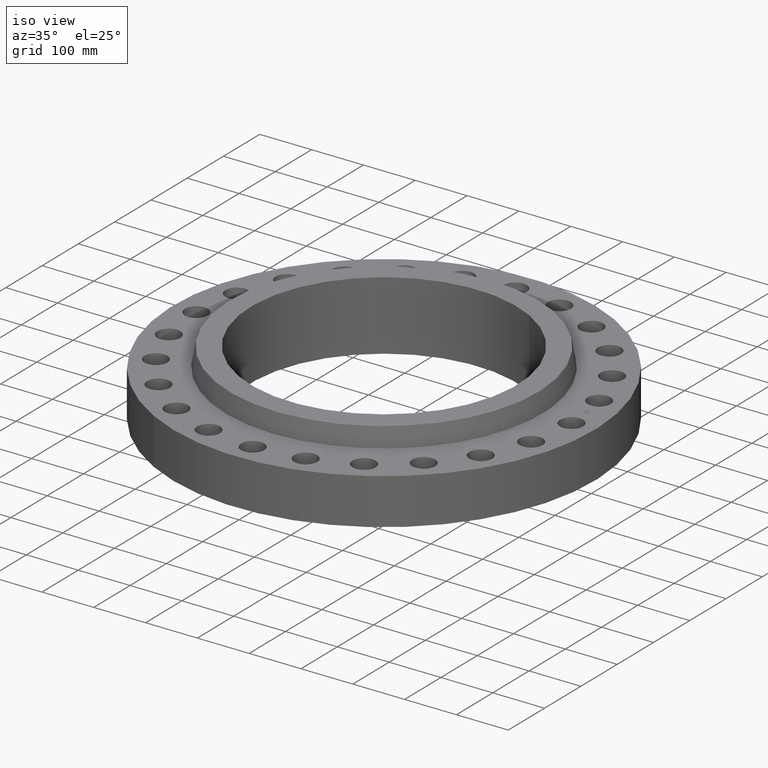
[diagram: clean part render]
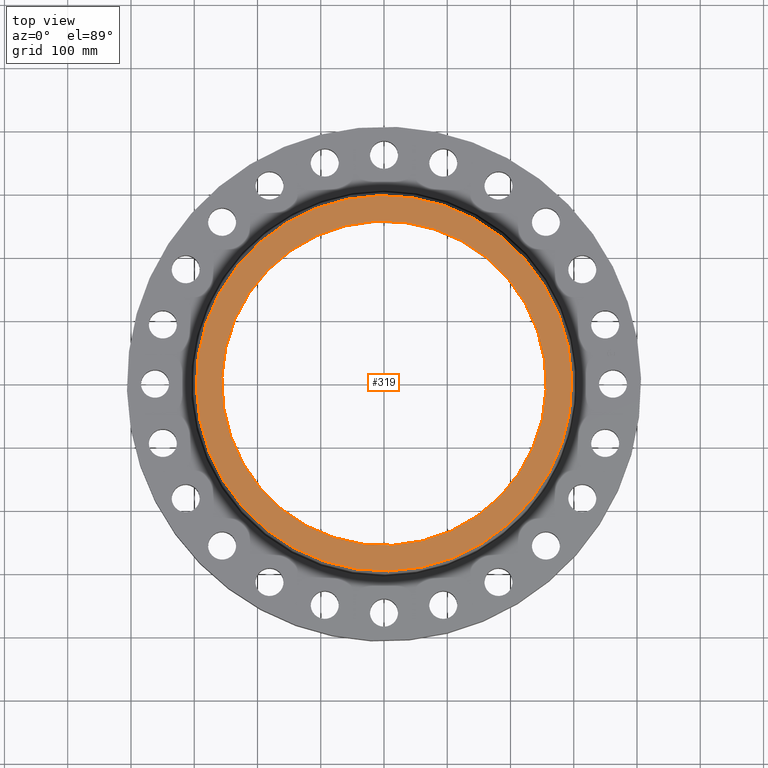
[diagram: tour spotlight — one face highlighted and labeled with its STEP entity id]
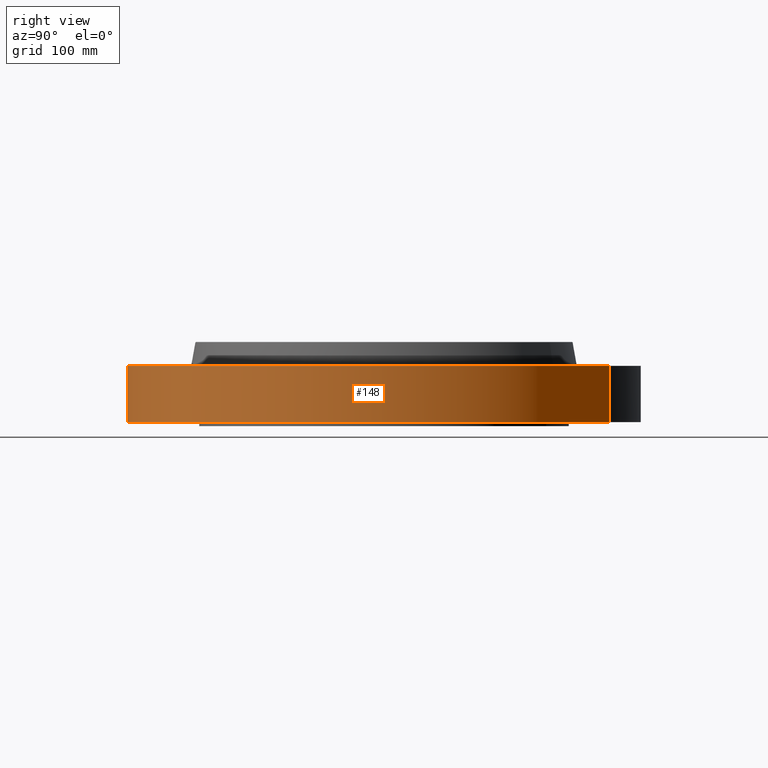
[diagram: tour spotlight — one face highlighted and labeled with its STEP entity id]
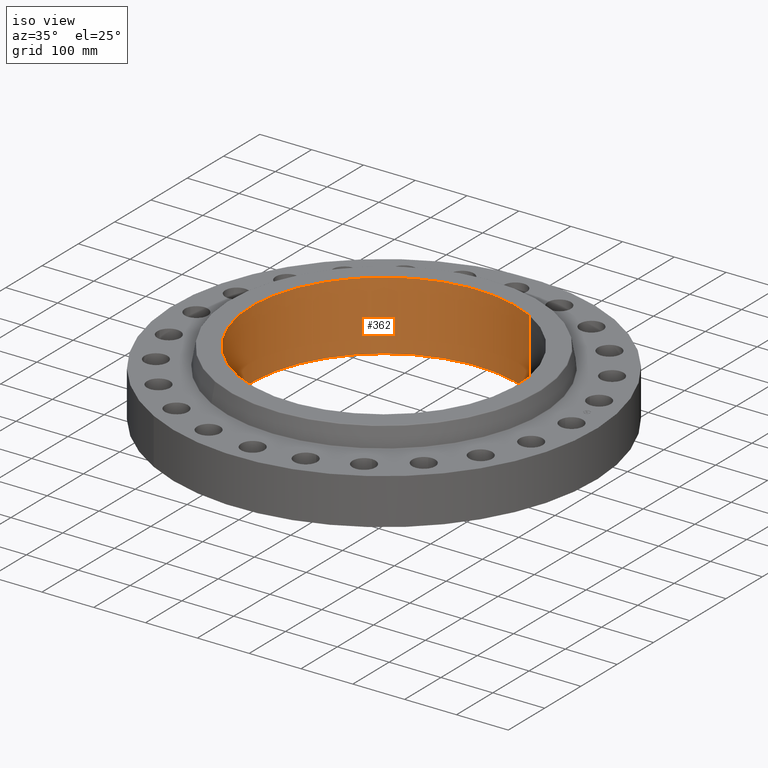
[diagram: tour spotlight — one face highlighted and labeled with its STEP entity id]
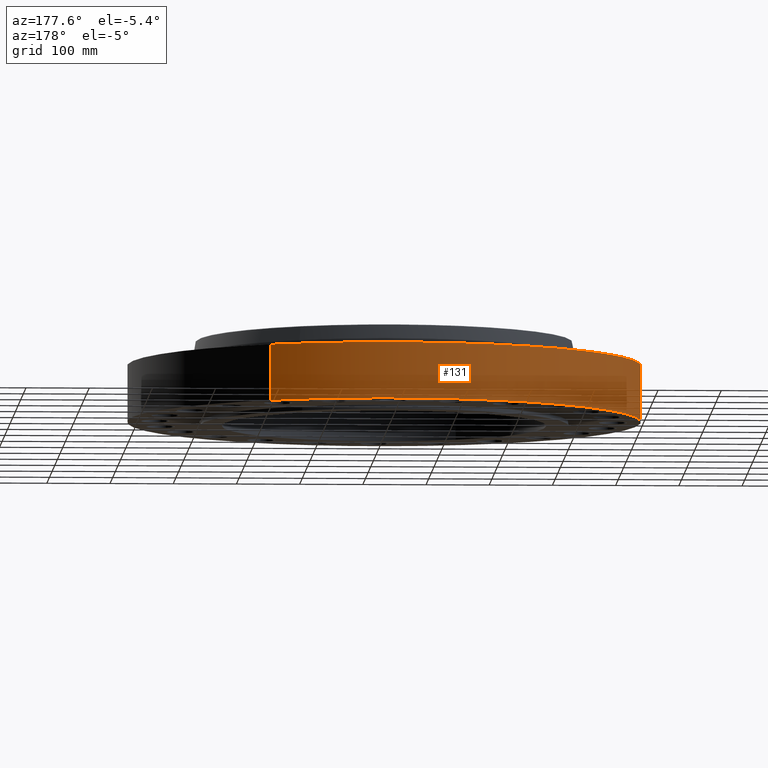
[diagram: tour spotlight — one face highlighted and labeled with its STEP entity id]
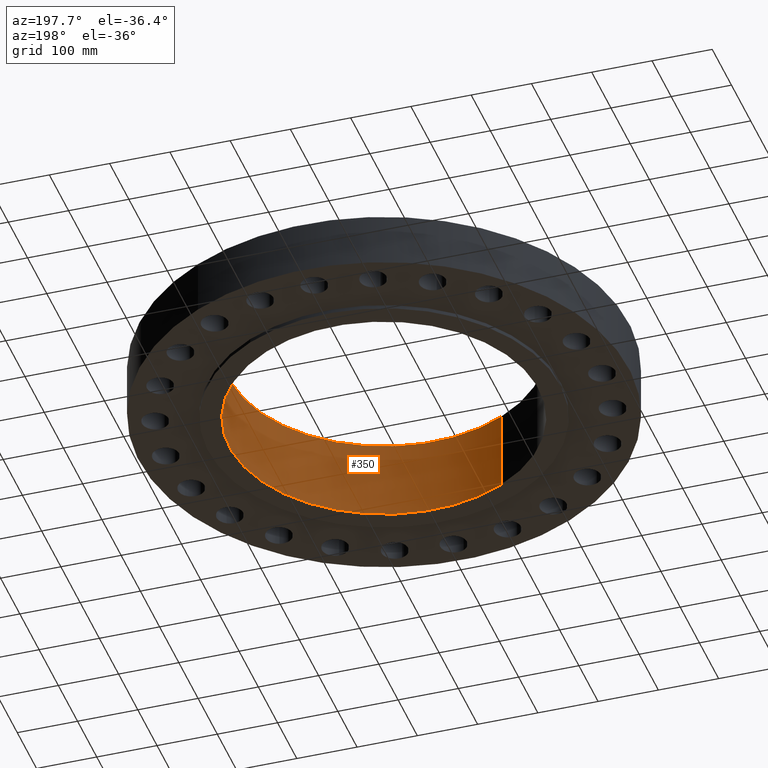
[diagram: tour spotlight — one face highlighted and labeled with its STEP entity id]
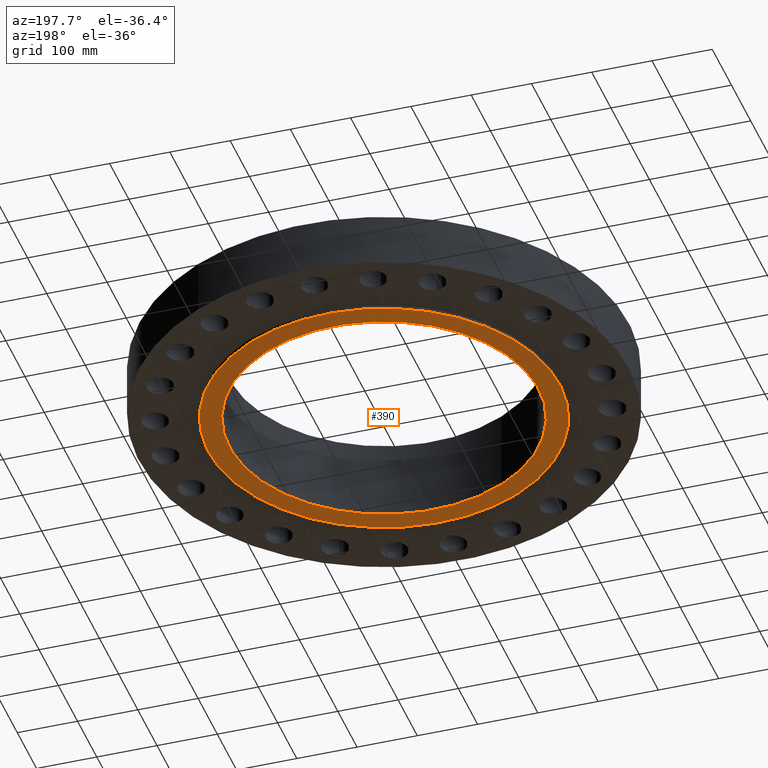
[diagram: tour spotlight — one face highlighted and labeled with its STEP entity id]
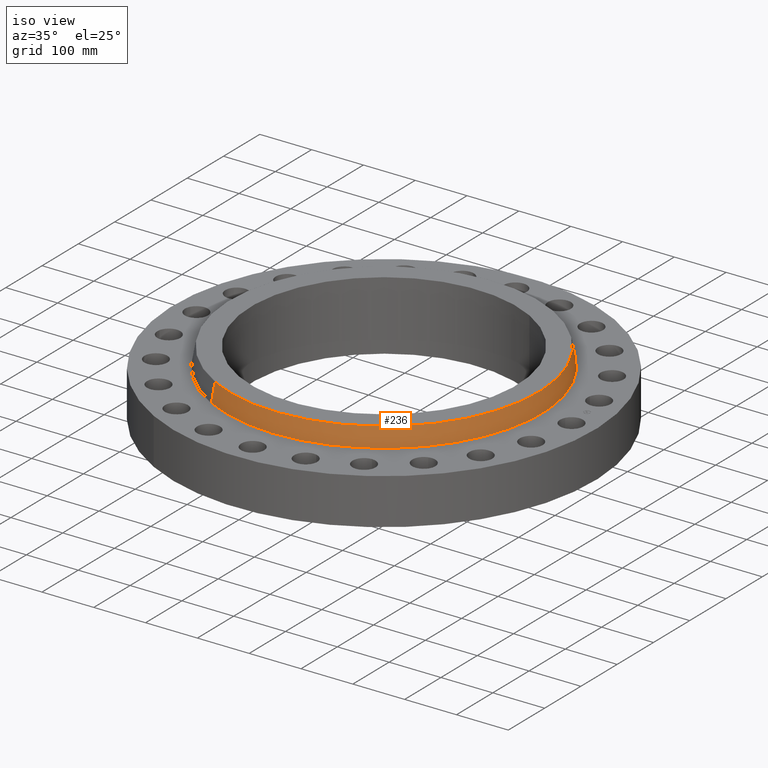
[diagram: tour spotlight — one face highlighted and labeled with its STEP entity id]
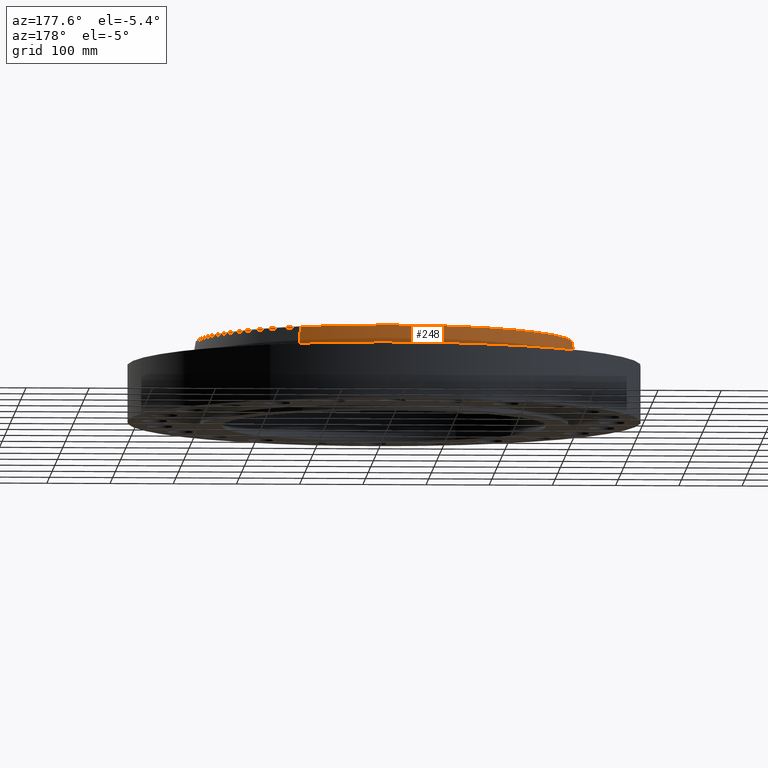
[diagram: tour spotlight — one face highlighted and labeled with its STEP entity id]
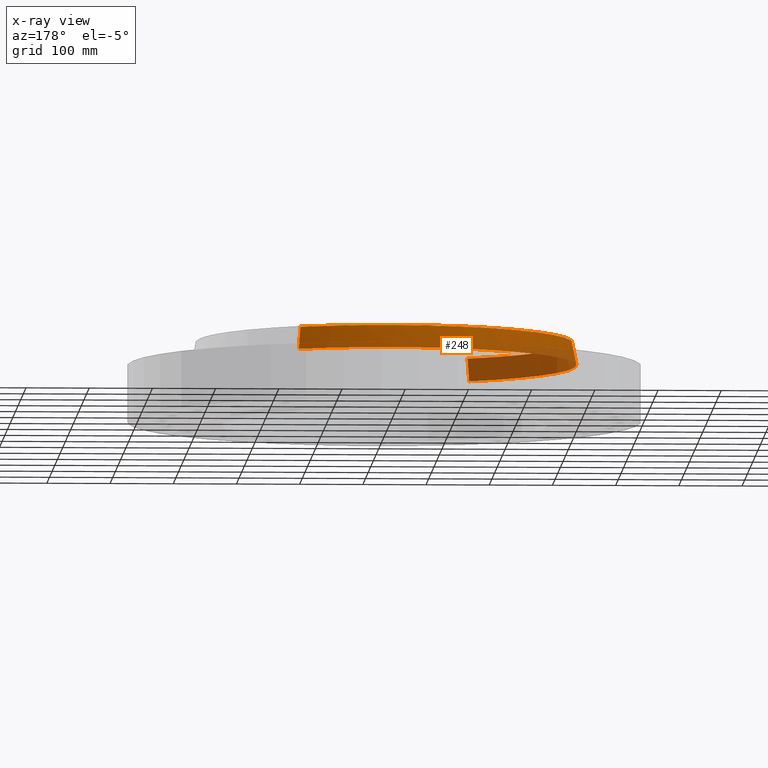
[diagram: x-ray of the same camera — body ghosted, this tour face saturated]
A machine part: a face-by-face anatomy tour. The part has 449 B-rep faces; the first image is the clean iso view, then the 8 largest visible faces are spotlighted one at a time (largest first), each with its STEP entity span.

Face 1 — top view, entity #319. In plain terms, the highlighted planar face has unit normal (0, 0, -1).
Definition (entity closure, byte-faithful):
#263=AXIS2_PLACEMENT_3D('Circle Axis2P3D',#261,#262,$) ;
#282=AXIS2_PLACEMENT_3D('Circle Axis2P3D',#280,#281,$) ;
#295=AXIS2_PLACEMENT_3D('Plane Axis2P3D',#292,#293,#294) ;
#303=AXIS2_PLACEMENT_3D('Circle Axis2P3D',#301,#302,$) ;
#312=AXIS2_PLACEMENT_3D('Circle Axis2P3D',#310,#311,$) ;
#258=CARTESIAN_POINT('Vertex',(5.60216582917,10.2546957653,5.00000000002)) ;
#261=CARTESIAN_POINT('Axis2P3D Location',(0.,0.,5.00000000002)) ;
#265=CARTESIAN_POINT('Vertex',(-5.60216582917,-10.2546957653,5.00000000002)) ;
#280=CARTESIAN_POINT('Axis2P3D Location',(0.,0.,5.00000000002)) ;
#292=CARTESIAN_POINT('Axis2P3D Location',(0.,11.6851635511,5.00000000002)) ;
#301=CARTESIAN_POINT('Axis2P3D Location',(0.,0.,5.00000000002)) ;
#305=CARTESIAN_POINT('Vertex',(-4.84219793992,-8.86358387513,5.00000000002)) ;
#307=CARTESIAN_POINT('Vertex',(4.84219793992,8.86358387513,5.00000000002)) ;
#310=CARTESIAN_POINT('Axis2P3D Location',(0.,0.,5.00000000002)) ;
#262=DIRECTION('Axis2P3D Direction',(0.,0.,-0.0393700787402)) ;
#281=DIRECTION('Axis2P3D Direction',(0.,0.,-0.0393700787402)) ;
#293=DIRECTION('Axis2P3D Direction',(0.,0.,-0.0393700787402)) ;
#294=DIRECTION('Axis2P3D XDirection',(0.0393700787402,0.,0.)) ;
#302=DIRECTION('Axis2P3D Direction',(0.,0.,-0.0393700787402)) ;
#311=DIRECTION('Axis2P3D Direction',(0.,0.,-0.0393700787402)) ;
#298=ORIENTED_EDGE('',*,*,#267,.F.) ;
#299=ORIENTED_EDGE('',*,*,#284,.F.) ;
#316=ORIENTED_EDGE('',*,*,#309,.T.) ;
#317=ORIENTED_EDGE('',*,*,#314,.T.) ;
#318=FACE_BOUND('',#315,.T.) ;
#319=ADVANCED_FACE('PartBody',(#300,#318),#296,.F.) ;
#264=CIRCLE('generated circle',#263,11.6851635511) ;
#283=CIRCLE('generated circle',#282,11.6851635511) ;
#304=CIRCLE('generated circle',#303,10.1) ;
#313=CIRCLE('generated circle',#312,10.1) ;
#267=EDGE_CURVE('',#259,#266,#264,.T.) ;
#284=EDGE_CURVE('',#266,#259,#283,.T.) ;
#309=EDGE_CURVE('',#306,#308,#304,.T.) ;
#314=EDGE_CURVE('',#308,#306,#313,.T.) ;
#297=EDGE_LOOP('',(#298,#299)) ;
#315=EDGE_LOOP('',(#316,#317)) ;
#300=FACE_OUTER_BOUND('',#297,.T.) ;
#296=PLANE('',#295) ;
#259=VERTEX_POINT('',#258) ;
#266=VERTEX_POINT('',#265) ;
#306=VERTEX_POINT('',#305) ;
#308=VERTEX_POINT('',#307) ;

Face 2 — right view, entity #148. In plain terms, the highlighted cylindrical surface (partial cylindrical patch) has radius 406.4 mm, axis along (0, 0, -1).
Definition (entity closure, byte-faithful):
#95=AXIS2_PLACEMENT_3D('Cylinder Axis2P3D',#92,#93,#94) ;
#134=AXIS2_PLACEMENT_3D('Circle Axis2P3D',#132,#133,$) ;
#139=AXIS2_PLACEMENT_3D('Circle Axis2P3D',#137,#138,$) ;
#92=CARTESIAN_POINT('Axis2P3D Location',(0.,0.,2.37500000001)) ;
#101=CARTESIAN_POINT('Vertex',(-7.6708086177,-14.0413209903,1.67844740731E-015)) ;
#103=CARTESIAN_POINT('Vertex',(7.6708086177,14.0413209903,1.67844740731E-015)) ;
#106=CARTESIAN_POINT('Line Origine',(-7.6708086177,-14.0413209903,1.75000000001)) ;
#110=CARTESIAN_POINT('Vertex',(-7.6708086177,-14.0413209903,3.50000000001)) ;
#117=CARTESIAN_POINT('Vertex',(7.6708086177,14.0413209903,3.50000000001)) ;
#120=CARTESIAN_POINT('Line Origine',(7.6708086177,14.0413209903,1.75000000001)) ;
#132=CARTESIAN_POINT('Axis2P3D Location',(0.,0.,1.95818864186E-015)) ;
#137=CARTESIAN_POINT('Axis2P3D Location',(0.,0.,3.50000000001)) ;
#93=DIRECTION('Axis2P3D Direction',(0.,0.,-0.0393700787402)) ;
#94=DIRECTION('Axis2P3D XDirection',(0.0188750212049,0.0345504945626,0.)) ;
#107=DIRECTION('Vector Direction',(0.,0.,-0.0393700787402)) ;
#121=DIRECTION('Vector Direction',(0.,0.,-0.0393700787402)) ;
#133=DIRECTION('Axis2P3D Direction',(0.,0.,-0.0393700787402)) ;
#138=DIRECTION('Axis2P3D Direction',(0.,0.,-0.0393700787402)) ;
#108=VECTOR('Line Direction',#107,0.0393700787402) ;
#122=VECTOR('Line Direction',#121,0.0393700787402) ;
#143=ORIENTED_EDGE('',*,*,#136,.F.) ;
#144=ORIENTED_EDGE('',*,*,#124,.T.) ;
#145=ORIENTED_EDGE('',*,*,#141,.T.) ;
#146=ORIENTED_EDGE('',*,*,#112,.F.) ;
#148=ADVANCED_FACE('PartBody',(#147),#96,.T.) ;
#135=CIRCLE('generated circle',#134,16.0000000001) ;
#140=CIRCLE('generated circle',#139,16.0000000001) ;
#96=CYLINDRICAL_SURFACE('generated cylinder',#95,16.0000000001) ;
#112=EDGE_CURVE('',#102,#111,#109,.F.) ;
#124=EDGE_CURVE('',#104,#118,#123,.F.) ;
#136=EDGE_CURVE('',#104,#102,#135,.T.) ;
#141=EDGE_CURVE('',#118,#111,#140,.T.) ;
#142=EDGE_LOOP('',(#143,#144,#145,#146)) ;
#147=FACE_OUTER_BOUND('',#142,.T.) ;
#109=LINE('Line',#106,#108) ;
#123=LINE('Line',#120,#122) ;
#102=VERTEX_POINT('',#101) ;
#104=VERTEX_POINT('',#103) ;
#111=VERTEX_POINT('',#110) ;
#118=VERTEX_POINT('',#117) ;

Face 3 — iso view, entity #362. In plain terms, the highlighted cylindrical surface (partial cylindrical patch) has radius 256.54 mm, axis along (0, 0, -1).
Definition (entity closure, byte-faithful):
#303=AXIS2_PLACEMENT_3D('Circle Axis2P3D',#301,#302,$) ;
#323=AXIS2_PLACEMENT_3D('Cylinder Axis2P3D',#320,#321,#322) ;
#353=AXIS2_PLACEMENT_3D('Circle Axis2P3D',#351,#352,$) ;
#301=CARTESIAN_POINT('Axis2P3D Location',(0.,0.,5.00000000002)) ;
#305=CARTESIAN_POINT('Vertex',(-4.84219793992,-8.86358387513,5.00000000002)) ;
#307=CARTESIAN_POINT('Vertex',(4.84219793992,8.86358387513,5.00000000002)) ;
#320=CARTESIAN_POINT('Axis2P3D Location',(0.,0.,2.37500000001)) ;
#325=CARTESIAN_POINT('Line Origine',(4.84219793992,8.86358387513,2.37500000001)) ;
#329=CARTESIAN_POINT('Vertex',(4.84219793992,8.86358387513,-0.250000000001)) ;
#336=CARTESIAN_POINT('Vertex',(-4.84219793992,-8.86358387513,-0.250000000001)) ;
#339=CARTESIAN_POINT('Line Origine',(-4.84219793992,-8.86358387513,2.37500000001)) ;
#351=CARTESIAN_POINT('Axis2P3D Location',(0.,0.,-0.250000000001)) ;
#302=DIRECTION('Axis2P3D Direction',(0.,0.,-0.0393700787402)) ;
#321=DIRECTION('Axis2P3D Direction',(0.,0.,-0.0393700787402)) ;
#322=DIRECTION('Axis2P3D XDirection',(-0.0188750212049,-0.0345504945626,0.)) ;
#326=DIRECTION('Vector Direction',(0.,0.,-0.0393700787402)) ;
#340=DIRECTION('Vector Direction',(0.,0.,-0.0393700787402)) ;
#352=DIRECTION('Axis2P3D Direction',(0.,0.,-0.0393700787402)) ;
#327=VECTOR('Line Direction',#326,0.0393700787402) ;
#341=VECTOR('Line Direction',#340,0.0393700787402) ;
#357=ORIENTED_EDGE('',*,*,#309,.F.) ;
#358=ORIENTED_EDGE('',*,*,#343,.T.) ;
#359=ORIENTED_EDGE('',*,*,#355,.T.) ;
#360=ORIENTED_EDGE('',*,*,#331,.F.) ;
#362=ADVANCED_FACE('PartBody',(#361),#324,.F.) ;
#304=CIRCLE('generated circle',#303,10.1) ;
#354=CIRCLE('generated circle',#353,10.1) ;
#324=CYLINDRICAL_SURFACE('generated cylinder',#323,10.1) ;
#309=EDGE_CURVE('',#306,#308,#304,.T.) ;
#331=EDGE_CURVE('',#308,#330,#328,.T.) ;
#343=EDGE_CURVE('',#306,#337,#342,.T.) ;
#355=EDGE_CURVE('',#337,#330,#354,.T.) ;
#356=EDGE_LOOP('',(#357,#358,#359,#360)) ;
#361=FACE_OUTER_BOUND('',#356,.T.) ;
#328=LINE('Line',#325,#327) ;
#342=LINE('Line',#339,#341) ;
#306=VERTEX_POINT('',#305) ;
#308=VERTEX_POINT('',#307) ;
#330=VERTEX_POINT('',#329) ;
#337=VERTEX_POINT('',#336) ;

Face 4 — auxiliary view, entity #131. In plain terms, the highlighted cylindrical surface (partial cylindrical patch) has radius 406.4 mm, axis along (0, 0, -1).
Definition (entity closure, byte-faithful):
#95=AXIS2_PLACEMENT_3D('Cylinder Axis2P3D',#92,#93,#94) ;
#99=AXIS2_PLACEMENT_3D('Circle Axis2P3D',#97,#98,$) ;
#115=AXIS2_PLACEMENT_3D('Circle Axis2P3D',#113,#114,$) ;
#92=CARTESIAN_POINT('Axis2P3D Location',(0.,0.,2.37500000001)) ;
#97=CARTESIAN_POINT('Axis2P3D Location',(0.,0.,1.95818864186E-015)) ;
#101=CARTESIAN_POINT('Vertex',(-7.6708086177,-14.0413209903,1.67844740731E-015)) ;
#103=CARTESIAN_POINT('Vertex',(7.6708086177,14.0413209903,1.67844740731E-015)) ;
#106=CARTESIAN_POINT('Line Origine',(-7.6708086177,-14.0413209903,1.75000000001)) ;
#110=CARTESIAN_POINT('Vertex',(-7.6708086177,-14.0413209903,3.50000000001)) ;
#113=CARTESIAN_POINT('Axis2P3D Location',(0.,0.,3.50000000001)) ;
#117=CARTESIAN_POINT('Vertex',(7.6708086177,14.0413209903,3.50000000001)) ;
#120=CARTESIAN_POINT('Line Origine',(7.6708086177,14.0413209903,1.75000000001)) ;
#93=DIRECTION('Axis2P3D Direction',(0.,0.,-0.0393700787402)) ;
#94=DIRECTION('Axis2P3D XDirection',(0.0188750212049,0.0345504945626,0.)) ;
#98=DIRECTION('Axis2P3D Direction',(0.,0.,-0.0393700787402)) ;
#107=DIRECTION('Vector Direction',(0.,0.,-0.0393700787402)) ;
#114=DIRECTION('Axis2P3D Direction',(0.,0.,-0.0393700787402)) ;
#121=DIRECTION('Vector Direction',(0.,0.,-0.0393700787402)) ;
#108=VECTOR('Line Direction',#107,0.0393700787402) ;
#122=VECTOR('Line Direction',#121,0.0393700787402) ;
#126=ORIENTED_EDGE('',*,*,#105,.F.) ;
#127=ORIENTED_EDGE('',*,*,#112,.T.) ;
#128=ORIENTED_EDGE('',*,*,#119,.T.) ;
#129=ORIENTED_EDGE('',*,*,#124,.F.) ;
#131=ADVANCED_FACE('PartBody',(#130),#96,.T.) ;
#100=CIRCLE('generated circle',#99,16.0000000001) ;
#116=CIRCLE('generated circle',#115,16.0000000001) ;
#96=CYLINDRICAL_SURFACE('generated cylinder',#95,16.0000000001) ;
#105=EDGE_CURVE('',#102,#104,#100,.T.) ;
#112=EDGE_CURVE('',#102,#111,#109,.F.) ;
#119=EDGE_CURVE('',#111,#118,#116,.T.) ;
#124=EDGE_CURVE('',#104,#118,#123,.F.) ;
#125=EDGE_LOOP('',(#126,#127,#128,#129)) ;
#130=FACE_OUTER_BOUND('',#125,.T.) ;
#109=LINE('Line',#106,#108) ;
#123=LINE('Line',#120,#122) ;
#102=VERTEX_POINT('',#101) ;
#104=VERTEX_POINT('',#103) ;
#111=VERTEX_POINT('',#110) ;
#118=VERTEX_POINT('',#117) ;

Face 5 — auxiliary view, entity #350. In plain terms, the highlighted cylindrical surface (partial cylindrical patch) has radius 256.54 mm, axis along (0, 0, -1).
Definition (entity closure, byte-faithful):
#312=AXIS2_PLACEMENT_3D('Circle Axis2P3D',#310,#311,$) ;
#323=AXIS2_PLACEMENT_3D('Cylinder Axis2P3D',#320,#321,#322) ;
#334=AXIS2_PLACEMENT_3D('Circle Axis2P3D',#332,#333,$) ;
#305=CARTESIAN_POINT('Vertex',(-4.84219793992,-8.86358387513,5.00000000002)) ;
#307=CARTESIAN_POINT('Vertex',(4.84219793992,8.86358387513,5.00000000002)) ;
#310=CARTESIAN_POINT('Axis2P3D Location',(0.,0.,5.00000000002)) ;
#320=CARTESIAN_POINT('Axis2P3D Location',(0.,0.,2.37500000001)) ;
#325=CARTESIAN_POINT('Line Origine',(4.84219793992,8.86358387513,2.37500000001)) ;
#329=CARTESIAN_POINT('Vertex',(4.84219793992,8.86358387513,-0.250000000001)) ;
#332=CARTESIAN_POINT('Axis2P3D Location',(0.,0.,-0.250000000001)) ;
#336=CARTESIAN_POINT('Vertex',(-4.84219793992,-8.86358387513,-0.250000000001)) ;
#339=CARTESIAN_POINT('Line Origine',(-4.84219793992,-8.86358387513,2.37500000001)) ;
#311=DIRECTION('Axis2P3D Direction',(0.,0.,-0.0393700787402)) ;
#321=DIRECTION('Axis2P3D Direction',(0.,0.,-0.0393700787402)) ;
#322=DIRECTION('Axis2P3D XDirection',(-0.0188750212049,-0.0345504945626,0.)) ;
#326=DIRECTION('Vector Direction',(0.,0.,-0.0393700787402)) ;
#333=DIRECTION('Axis2P3D Direction',(0.,0.,-0.0393700787402)) ;
#340=DIRECTION('Vector Direction',(0.,0.,-0.0393700787402)) ;
#327=VECTOR('Line Direction',#326,0.0393700787402) ;
#341=VECTOR('Line Direction',#340,0.0393700787402) ;
#345=ORIENTED_EDGE('',*,*,#314,.F.) ;
#346=ORIENTED_EDGE('',*,*,#331,.T.) ;
#347=ORIENTED_EDGE('',*,*,#338,.T.) ;
#348=ORIENTED_EDGE('',*,*,#343,.F.) ;
#350=ADVANCED_FACE('PartBody',(#349),#324,.F.) ;
#313=CIRCLE('generated circle',#312,10.1) ;
#335=CIRCLE('generated circle',#334,10.1) ;
#324=CYLINDRICAL_SURFACE('generated cylinder',#323,10.1) ;
#314=EDGE_CURVE('',#308,#306,#313,.T.) ;
#331=EDGE_CURVE('',#308,#330,#328,.T.) ;
#338=EDGE_CURVE('',#330,#337,#335,.T.) ;
#343=EDGE_CURVE('',#306,#337,#342,.T.) ;
#344=EDGE_LOOP('',(#345,#346,#347,#348)) ;
#349=FACE_OUTER_BOUND('',#344,.T.) ;
#328=LINE('Line',#325,#327) ;
#342=LINE('Line',#339,#341) ;
#306=VERTEX_POINT('',#305) ;
#308=VERTEX_POINT('',#307) ;
#330=VERTEX_POINT('',#329) ;
#337=VERTEX_POINT('',#336) ;

Face 6 — auxiliary view, entity #390. In plain terms, the highlighted planar face has unit normal (0, 0, -1).
Definition (entity closure, byte-faithful):
#334=AXIS2_PLACEMENT_3D('Circle Axis2P3D',#332,#333,$) ;
#353=AXIS2_PLACEMENT_3D('Circle Axis2P3D',#351,#352,$) ;
#366=AXIS2_PLACEMENT_3D('Plane Axis2P3D',#363,#364,#365) ;
#370=AXIS2_PLACEMENT_3D('Circle Axis2P3D',#368,#369,$) ;
#379=AXIS2_PLACEMENT_3D('Circle Axis2P3D',#377,#378,$) ;
#329=CARTESIAN_POINT('Vertex',(4.84219793992,8.86358387513,-0.250000000001)) ;
#332=CARTESIAN_POINT('Axis2P3D Location',(0.,0.,-0.250000000001)) ;
#336=CARTESIAN_POINT('Vertex',(-4.84219793992,-8.86358387513,-0.250000000001)) ;
#351=CARTESIAN_POINT('Axis2P3D Location',(0.,0.,-0.250000000001)) ;
#363=CARTESIAN_POINT('Axis2P3D Location',(0.,10.1,-0.250000000001)) ;
#368=CARTESIAN_POINT('Axis2P3D Location',(0.,0.,-0.250000000001)) ;
#372=CARTESIAN_POINT('Vertex',(-5.51339369397,-10.0921994618,-0.250000000001)) ;
#374=CARTESIAN_POINT('Vertex',(5.51339369397,10.0921994618,-0.250000000001)) ;
#377=CARTESIAN_POINT('Axis2P3D Location',(0.,0.,-0.250000000001)) ;
#333=DIRECTION('Axis2P3D Direction',(0.,0.,-0.0393700787402)) ;
#352=DIRECTION('Axis2P3D Direction',(0.,0.,-0.0393700787402)) ;
#364=DIRECTION('Axis2P3D Direction',(0.,0.,-0.0393700787402)) ;
#365=DIRECTION('Axis2P3D XDirection',(0.0393700787402,0.,0.)) ;
#369=DIRECTION('Axis2P3D Direction',(0.,0.,-0.0393700787402)) ;
#378=DIRECTION('Axis2P3D Direction',(0.,0.,-0.0393700787402)) ;
#383=ORIENTED_EDGE('',*,*,#376,.T.) ;
#384=ORIENTED_EDGE('',*,*,#381,.T.) ;
#387=ORIENTED_EDGE('',*,*,#338,.F.) ;
#388=ORIENTED_EDGE('',*,*,#355,.F.) ;
#389=FACE_BOUND('',#386,.T.) ;
#390=ADVANCED_FACE('PartBody',(#385,#389),#367,.T.) ;
#335=CIRCLE('generated circle',#334,10.1) ;
#354=CIRCLE('generated circle',#353,10.1) ;
#371=CIRCLE('generated circle',#370,11.5) ;
#380=CIRCLE('generated circle',#379,11.5) ;
#338=EDGE_CURVE('',#330,#337,#335,.T.) ;
#355=EDGE_CURVE('',#337,#330,#354,.T.) ;
#376=EDGE_CURVE('',#373,#375,#371,.T.) ;
#381=EDGE_CURVE('',#375,#373,#380,.T.) ;
#382=EDGE_LOOP('',(#383,#384)) ;
#386=EDGE_LOOP('',(#387,#388)) ;
#385=FACE_OUTER_BOUND('',#382,.T.) ;
#367=PLANE('',#366) ;
#330=VERTEX_POINT('',#329) ;
#337=VERTEX_POINT('',#336) ;
#373=VERTEX_POINT('',#372) ;
#375=VERTEX_POINT('',#374) ;

Face 7 — iso view, entity #236. In plain terms, the highlighted conical surface has half-angle 10 deg.
Definition (entity closure, byte-faithful):
#172=AXIS2_PLACEMENT_3D('Circle Axis2P3D',#170,#171,$) ;
#209=AXIS2_PLACEMENT_3D('Cone Axis2P3D',#206,#207,#208) ;
#220=AXIS2_PLACEMENT_3D('Circle Axis2P3D',#218,#219,$) ;
#167=CARTESIAN_POINT('Vertex',(5.74891509159,10.5233184883,3.54958110935)) ;
#170=CARTESIAN_POINT('Axis2P3D Location',(0.,0.,3.54958110935)) ;
#174=CARTESIAN_POINT('Vertex',(-5.74891509159,-10.5233184883,3.54958110935)) ;
#206=CARTESIAN_POINT('Axis2P3D Location',(0.,0.,4.95041889068)) ;
#211=CARTESIAN_POINT('Line Origine',(5.68970472,10.4149346301,4.25000000002)) ;
#215=CARTESIAN_POINT('Vertex',(5.63049434842,10.3065507719,4.95041889068)) ;
#218=CARTESIAN_POINT('Axis2P3D Location',(0.,0.,4.95041889068)) ;
#222=CARTESIAN_POINT('Vertex',(-5.63049434842,-10.3065507719,4.95041889068)) ;
#225=CARTESIAN_POINT('Line Origine',(-5.68970472,-10.4149346301,4.25000000002)) ;
#171=DIRECTION('Axis2P3D Direction',(0.,0.,-0.0393700787402)) ;
#207=DIRECTION('Axis2P3D Direction',(0.,0.,-0.0393700787402)) ;
#208=DIRECTION('Axis2P3D XDirection',(-0.0188750212049,-0.0345504945626,0.)) ;
#212=DIRECTION('Vector Direction',(0.00327761303565,0.00599963041829,-0.03877195878)) ;
#219=DIRECTION('Axis2P3D Direction',(0.,0.,-0.0393700787402)) ;
#226=DIRECTION('Vector Direction',(-0.00327761303565,-0.00599963041829,-0.03877195878)) ;
#213=VECTOR('Line Direction',#212,0.0393700787402) ;
#227=VECTOR('Line Direction',#226,0.0393700787402) ;
#231=ORIENTED_EDGE('',*,*,#176,.F.) ;
#232=ORIENTED_EDGE('',*,*,#217,.T.) ;
#233=ORIENTED_EDGE('',*,*,#224,.T.) ;
#234=ORIENTED_EDGE('',*,*,#229,.F.) ;
#236=ADVANCED_FACE('PartBody',(#235),#210,.T.) ;
#173=CIRCLE('generated circle',#172,11.9912575127) ;
#221=CIRCLE('generated circle',#220,11.7442520163) ;
#210=CONICAL_SURFACE('Cone',#209,11.7442520163,0.174532925199) ;
#176=EDGE_CURVE('',#168,#175,#173,.T.) ;
#217=EDGE_CURVE('',#168,#216,#214,.F.) ;
#224=EDGE_CURVE('',#216,#223,#221,.T.) ;
#229=EDGE_CURVE('',#175,#223,#228,.F.) ;
#230=EDGE_LOOP('',(#231,#232,#233,#234)) ;
#235=FACE_OUTER_BOUND('',#230,.T.) ;
#214=LINE('Line',#211,#213) ;
#228=LINE('Line',#225,#227) ;
#168=VERTEX_POINT('',#167) ;
#175=VERTEX_POINT('',#174) ;
#216=VERTEX_POINT('',#215) ;
#223=VERTEX_POINT('',#222) ;

Face 8 — auxiliary view, entity #248. An x-ray twin of the same camera follows (body ghosted, this face saturated) — the face is partly hidden behind the body. In plain terms, the highlighted conical surface has half-angle 10 deg.
Definition (entity closure, byte-faithful):
#196=AXIS2_PLACEMENT_3D('Circle Axis2P3D',#194,#195,$) ;
#209=AXIS2_PLACEMENT_3D('Cone Axis2P3D',#206,#207,#208) ;
#239=AXIS2_PLACEMENT_3D('Circle Axis2P3D',#237,#238,$) ;
#167=CARTESIAN_POINT('Vertex',(5.74891509159,10.5233184883,3.54958110935)) ;
#174=CARTESIAN_POINT('Vertex',(-5.74891509159,-10.5233184883,3.54958110935)) ;
#194=CARTESIAN_POINT('Axis2P3D Location',(0.,0.,3.54958110935)) ;
#206=CARTESIAN_POINT('Axis2P3D Location',(0.,0.,4.95041889068)) ;
#211=CARTESIAN_POINT('Line Origine',(5.68970472,10.4149346301,4.25000000002)) ;
#215=CARTESIAN_POINT('Vertex',(5.63049434842,10.3065507719,4.95041889068)) ;
#222=CARTESIAN_POINT('Vertex',(-5.63049434842,-10.3065507719,4.95041889068)) ;
#225=CARTESIAN_POINT('Line Origine',(-5.68970472,-10.4149346301,4.25000000002)) ;
#237=CARTESIAN_POINT('Axis2P3D Location',(0.,0.,4.95041889068)) ;
#195=DIRECTION('Axis2P3D Direction',(0.,0.,-0.0393700787402)) ;
#207=DIRECTION('Axis2P3D Direction',(0.,0.,-0.0393700787402)) ;
#208=DIRECTION('Axis2P3D XDirection',(-0.0188750212049,-0.0345504945626,0.)) ;
#212=DIRECTION('Vector Direction',(0.00327761303565,0.00599963041829,-0.03877195878)) ;
#226=DIRECTION('Vector Direction',(-0.00327761303565,-0.00599963041829,-0.03877195878)) ;
#238=DIRECTION('Axis2P3D Direction',(0.,0.,-0.0393700787402)) ;
#213=VECTOR('Line Direction',#212,0.0393700787402) ;
#227=VECTOR('Line Direction',#226,0.0393700787402) ;
#243=ORIENTED_EDGE('',*,*,#198,.F.) ;
#244=ORIENTED_EDGE('',*,*,#229,.T.) ;
#245=ORIENTED_EDGE('',*,*,#241,.T.) ;
#246=ORIENTED_EDGE('',*,*,#217,.F.) ;
#248=ADVANCED_FACE('PartBody',(#247),#210,.T.) ;
#197=CIRCLE('generated circle',#196,11.9912575127) ;
#240=CIRCLE('generated circle',#239,11.7442520163) ;
#210=CONICAL_SURFACE('Cone',#209,11.7442520163,0.174532925199) ;
#198=EDGE_CURVE('',#175,#168,#197,.T.) ;
#217=EDGE_CURVE('',#168,#216,#214,.F.) ;
#229=EDGE_CURVE('',#175,#223,#228,.F.) ;
#241=EDGE_CURVE('',#223,#216,#240,.T.) ;
#242=EDGE_LOOP('',(#243,#244,#245,#246)) ;
#247=FACE_OUTER_BOUND('',#242,.T.) ;
#214=LINE('Line',#211,#213) ;
#228=LINE('Line',#225,#227) ;
#168=VERTEX_POINT('',#167) ;
#175=VERTEX_POINT('',#174) ;
#216=VERTEX_POINT('',#215) ;
#223=VERTEX_POINT('',#222) ;